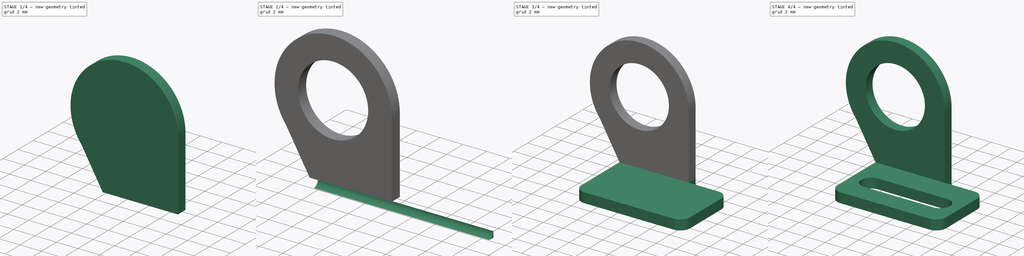
[diagram: build sequence overview — one tinted view per stage of 4, left to right]
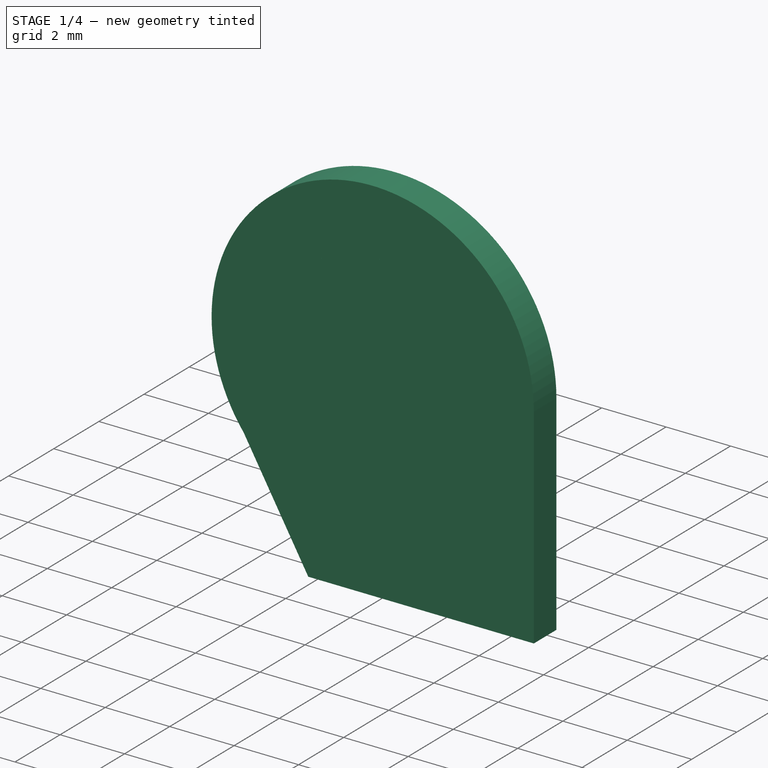
[diagram: stage 1 of 4 — iso view after this stage's code; geometry added in this stage tinted green]
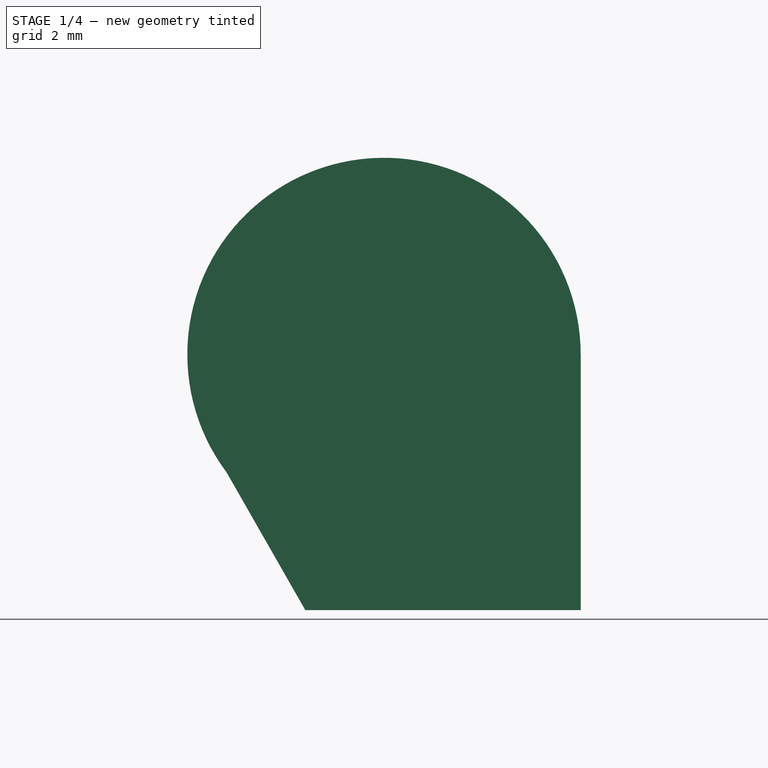
[diagram: stage 1 of 4 — front view after this stage's code; geometry added in this stage tinted green]
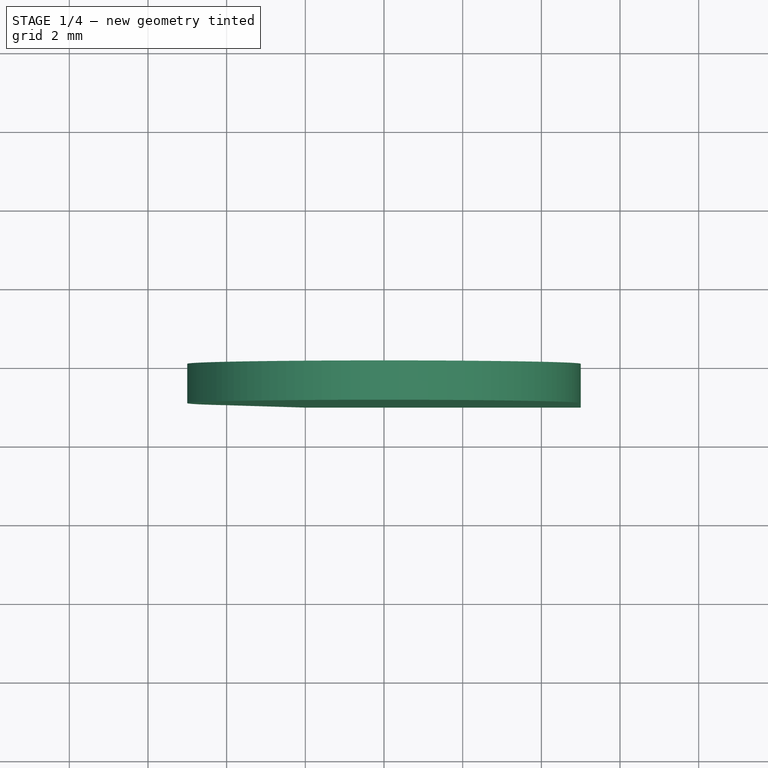
[diagram: stage 1 of 4 — top view after this stage's code; geometry added in this stage tinted green]
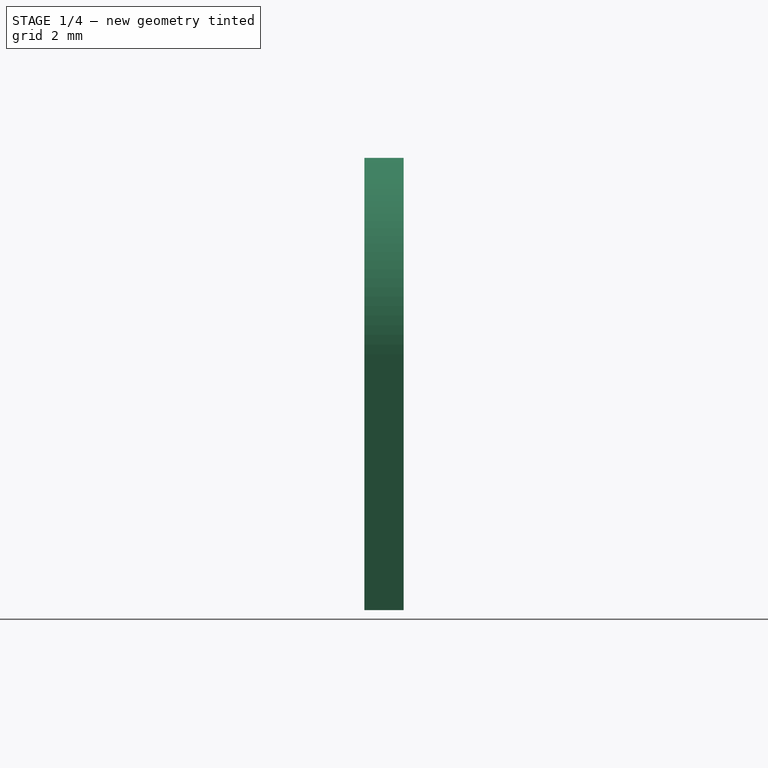
[diagram: stage 1 of 4 — right view after this stage's code; geometry added in this stage tinted green]
FCSTD DOCUMENT  (FreeCAD 0.14R3702 (Git))
Label: scaleauto-e
License: CC-BY 3.0
LicenseURL: http://creativecommons.org/licenses/by/3.0/
objects: Sketcher::SketchObject×5, Part::Extrusion×5, Part::Cut×3, Part::Compound×1
note: 14 computed .brp shape members not serialized (recipe doc carries the construction recipe); baked Part::Feature solids carry a one-line shape summary decoded from their .brp

FEATURE [Sketcher::SketchObject] Sketch003
  Placement = pos=(0,-1,-0.5) rot=(-1,0,0;4.71239rad)
  sketch-geometry (4):
    g0: ArcOfCircle CenterX=2 CenterY=8 CenterZ=0 NormalX=0 NormalY=0 NormalZ=1 Radius=5 StartAngle=0 EndAngle=3.78509
    g1: LineSegment StartX=-2 StartY=5 StartZ=0 EndX=0 EndY=1.5 EndZ=0
    g2: LineSegment StartX=0 StartY=1.5 StartZ=0 EndX=7 EndY=1.5 EndZ=0
    g3: LineSegment StartX=7 StartY=8 StartZ=0 EndX=7 EndY=1.5 EndZ=0
  constraints (5):
    c: Coincident(g1,g0)
    c: Coincident(g2,g1)
    c: Coincident(g3,g0)
    c: Coincident(g3,g2)
    c: Vertical(g3)
FEATURE [Sketcher::SketchObject] Sketch004
  Placement = pos=(0,-1,-0.5) rot=(-1,0,0;4.71239rad)
  sketch-geometry (1):
    g0: Circle CenterX=2 CenterY=8 CenterZ=0 NormalX=0 NormalY=0 NormalZ=1 Radius=3
FEATURE [Part::Extrusion] Extrude003
  Base = -> Sketch003
  Dir = (0,1,0)
  Solid = true
FEATURE [Part::Extrusion] Extrude004
  Base = -> Sketch004
  Dir = (0,1,0)
  Solid = true
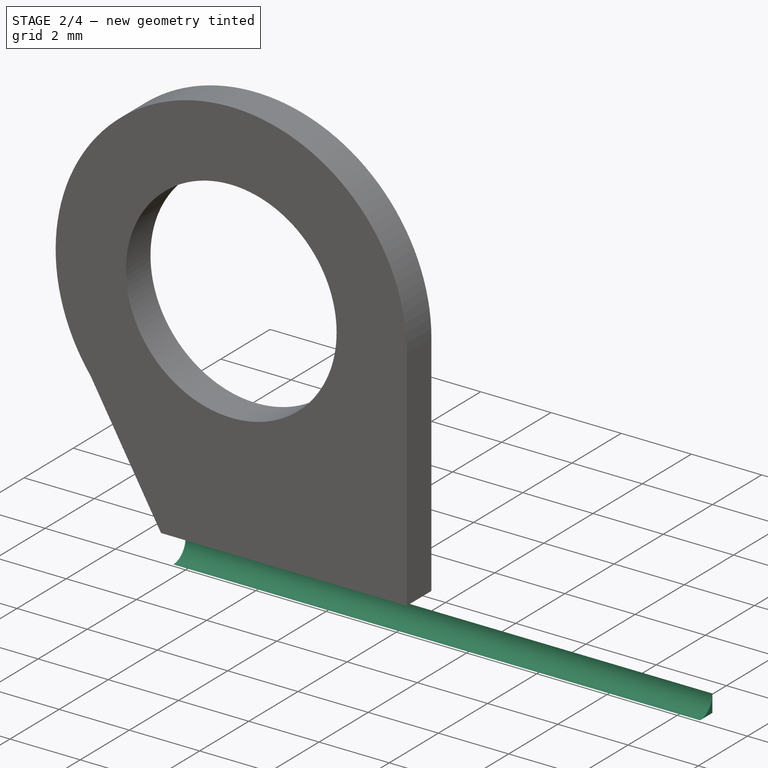
[diagram: stage 2 of 4 — iso view after this stage's code; geometry added in this stage tinted green]
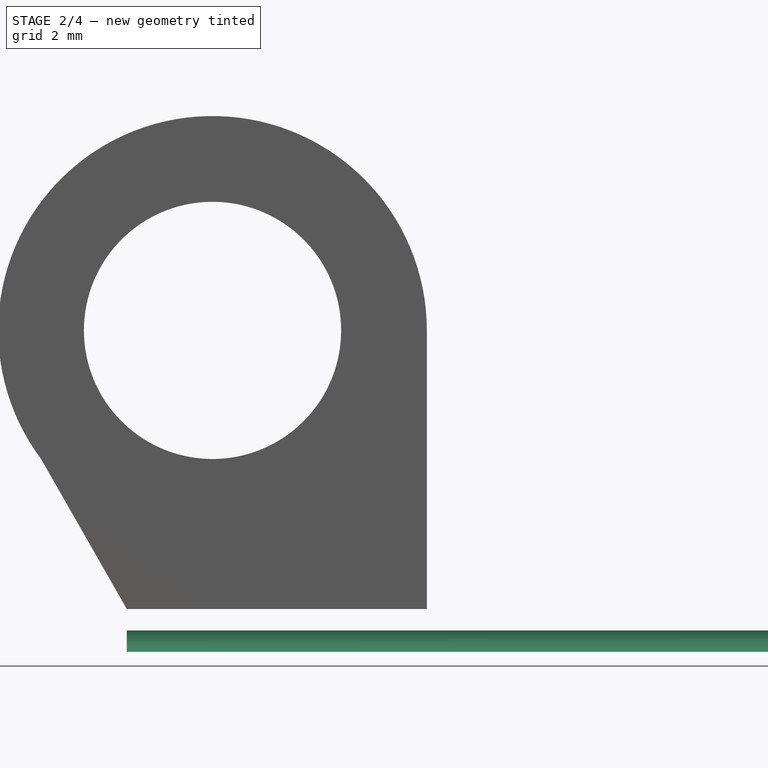
[diagram: stage 2 of 4 — front view after this stage's code; geometry added in this stage tinted green]
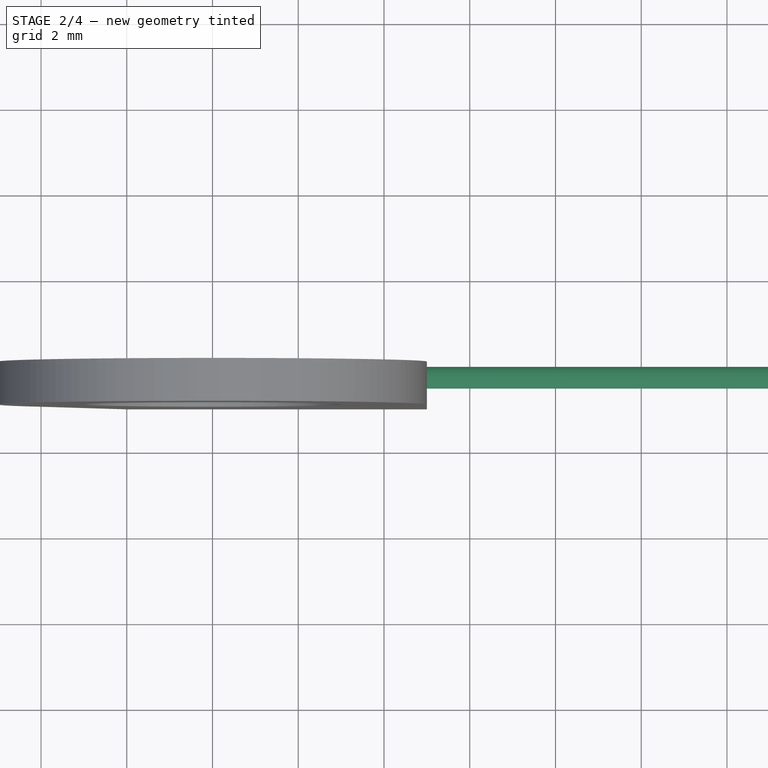
[diagram: stage 2 of 4 — top view after this stage's code; geometry added in this stage tinted green]
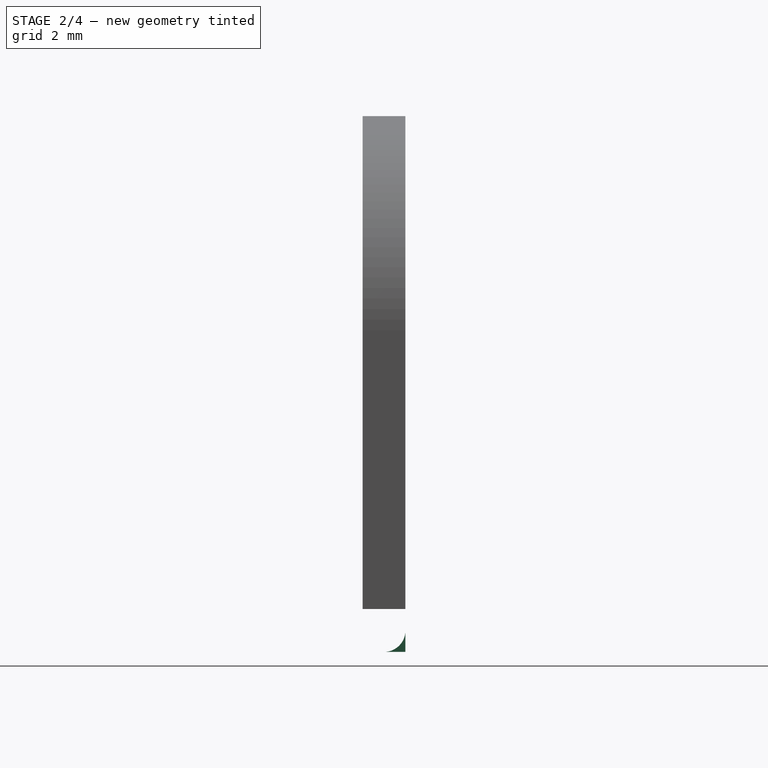
[diagram: stage 2 of 4 — right view after this stage's code; geometry added in this stage tinted green]
FEATURE [Sketcher::SketchObject] Sketch002
  Placement = pos=(0,0,0) rot=(0.57735,0.57735,0.57735;2.0944rad)
  sketch-geometry (3):
    g0: ArcOfCircle CenterX=-0.5 CenterY=0.5 CenterZ=0 NormalX=0 NormalY=0 NormalZ=1 Radius=0.5 StartAngle=4.71239 EndAngle=6.28319
    g1: LineSegment StartX=0 StartY=0.5 StartZ=0 EndX=0 EndY=0 EndZ=0
    g2: LineSegment StartX=-0.5 StartY=0 StartZ=0 EndX=0 EndY=0 EndZ=0
  constraints (7):
    c: PointOnObject(g0,g-2)
    c: Coincident(g1,g0)
    c: Vertical(g1)
    c: Coincident(g2,g0)
    c: Coincident(g2,g-1)
    c: Horizontal(g2)
    c: Coincident(g1,g2)
FEATURE [Part::Extrusion] Extrude002
  Base = -> Sketch002
  Dir = (15,0,0)
  Solid = true
FEATURE [Part::Cut] Cut002
  Base = -> Extrude003
  Tool = -> Extrude004
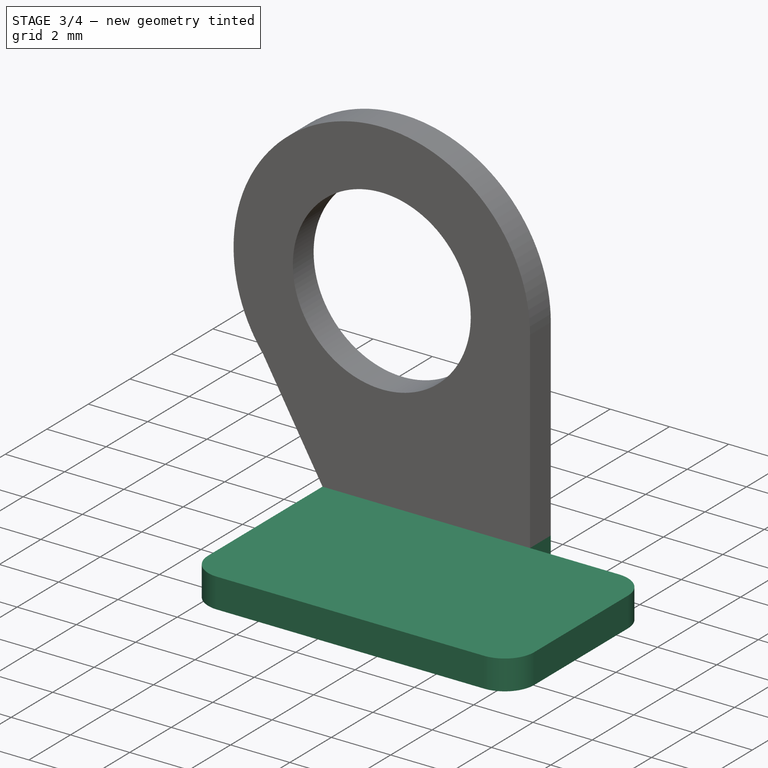
[diagram: stage 3 of 4 — iso view after this stage's code; geometry added in this stage tinted green]
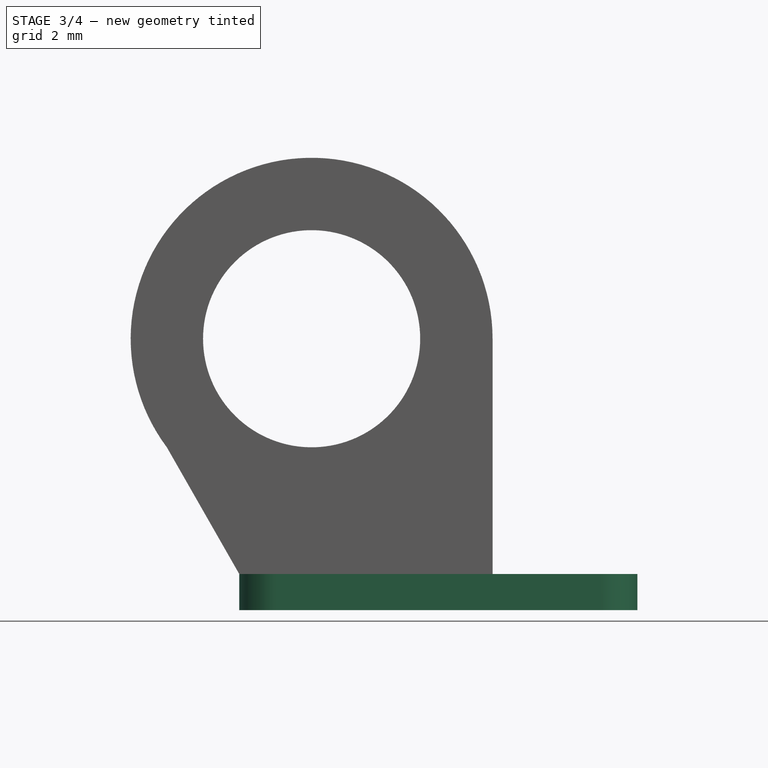
[diagram: stage 3 of 4 — front view after this stage's code; geometry added in this stage tinted green]
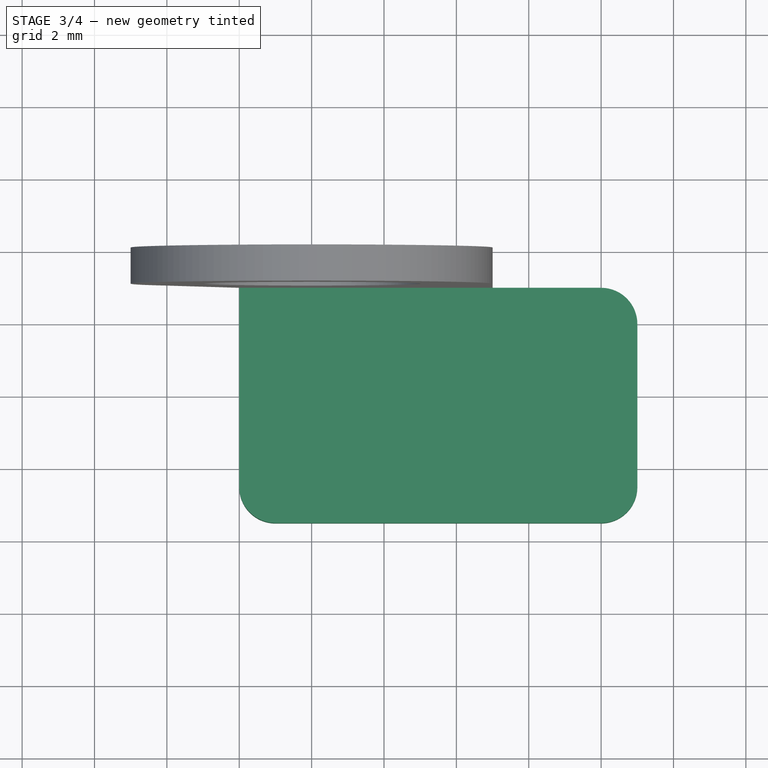
[diagram: stage 3 of 4 — top view after this stage's code; geometry added in this stage tinted green]
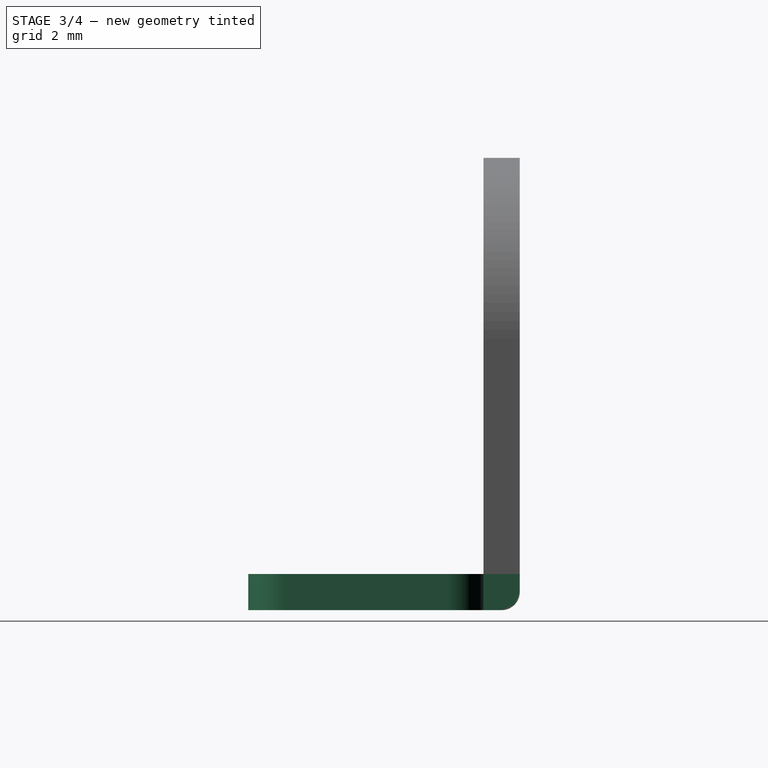
[diagram: stage 3 of 4 — right view after this stage's code; geometry added in this stage tinted green]
FEATURE [Sketcher::SketchObject] Sketch
  Placement = pos=(0,-0.5,0) rot=(0,0,1;0rad)
  sketch-geometry (9):
    g0: ArcOfCircle CenterX=1 CenterY=-6 CenterZ=0 NormalX=0 NormalY=0 NormalZ=1 Radius=1 StartAngle=3.14159 EndAngle=4.71239
    g1: LineSegment StartX=1 StartY=-7 StartZ=0 EndX=10 EndY=-7 EndZ=0
    g2: ArcOfCircle CenterX=10 CenterY=-6 CenterZ=0 NormalX=0 NormalY=0 NormalZ=1 Radius=1 StartAngle=4.71239 EndAngle=6.28318
    g3: LineSegment StartX=11 StartY=-6 StartZ=0 EndX=11 EndY=-1.5 EndZ=0
    g4: ArcOfCircle CenterX=10 CenterY=-1.5 CenterZ=0 NormalX=0 NormalY=0 NormalZ=1 Radius=1 StartAngle=0 EndAngle=1.5708
    g5: LineSegment StartX=10 StartY=-0.5 StartZ=0 EndX=7 EndY=-0.5 EndZ=0
    g6: LineSegment StartX=7 StartY=-0.5 StartZ=0 EndX=7 EndY=0.5 EndZ=0
    g7: LineSegment StartX=7 StartY=0.5 StartZ=0 EndX=0 EndY=0.5 EndZ=0
    g8: LineSegment StartX=0 StartY=0.5 StartZ=0 EndX=0 EndY=-6 EndZ=0
  constraints (13):
    c: Coincident(g1,g0)
    c: Horizontal(g1)
    c: Coincident(g2,g1)
    c: Coincident(g3,g2)
    c: Vertical(g3)
    c: Coincident(g4,g3)
    c: Coincident(g5,g4)
    c: Horizontal(g5)
    c: Vertical(g6)
    c: Coincident(g7,g6)
    c: Coincident(g8,g7)
    c: Coincident(g8,g0)
    c: Vertical(g8)
FEATURE [Part::Extrusion] Extrude
  Base = -> Sketch
  Dir = (0,0,1)
  Solid = true
FEATURE [Sketcher::SketchObject] Sketch001
  sketch-geometry (4):
    g0: LineSegment StartX=2 StartY=-5.5 StartZ=0 EndX=9 EndY=-5.5 EndZ=0
    g1: ArcOfCircle CenterX=2 CenterY=-4.5 CenterZ=0 NormalX=0 NormalY=0 NormalZ=1 Radius=1 StartAngle=1.5708 EndAngle=4.71239
    g2: LineSegment StartX=2 StartY=-3.5 StartZ=0 EndX=9 EndY=-3.5 EndZ=0
    g3: ArcOfCircle CenterX=9 CenterY=-4.5 CenterZ=0 NormalX=0 NormalY=0 NormalZ=1 Radius=1 StartAngle=4.71239 EndAngle=7.85398
  constraints (6):
    c: Horizontal(g0)
    c: Coincident(g1,g0)
    c: Coincident(g2,g1)
    c: Horizontal(g2)
    c: Coincident(g3,g0)
    c: Coincident(g3,g2)
FEATURE [Part::Extrusion] Extrude001
  Base = -> Sketch001
  Dir = (0,0,1)
  Solid = true
FEATURE [Part::Cut] Cut
  Base = -> Extrude
  Tool = -> Extrude002
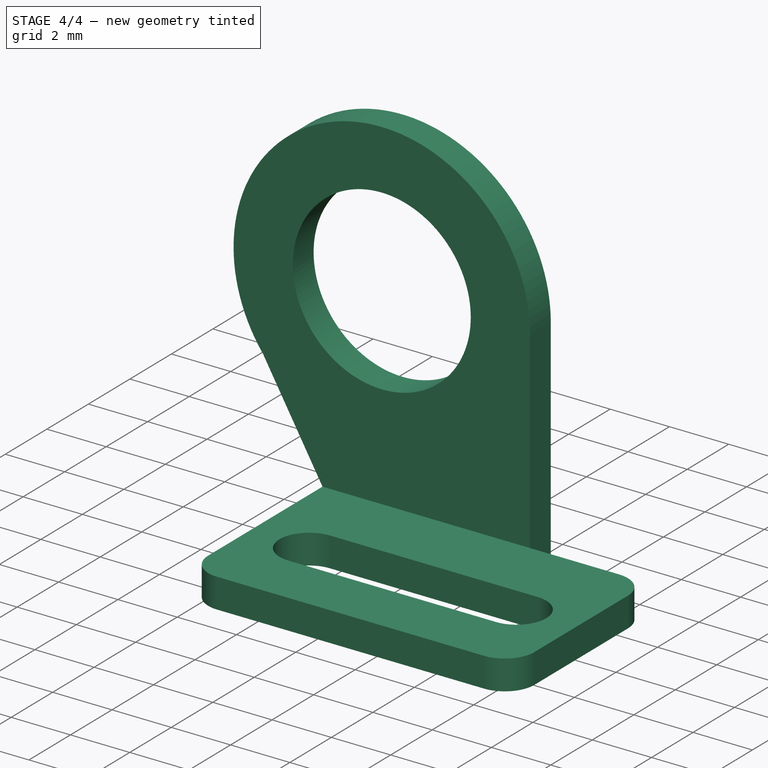
[diagram: stage 4 of 4 — iso view after this stage's code; geometry added in this stage tinted green]
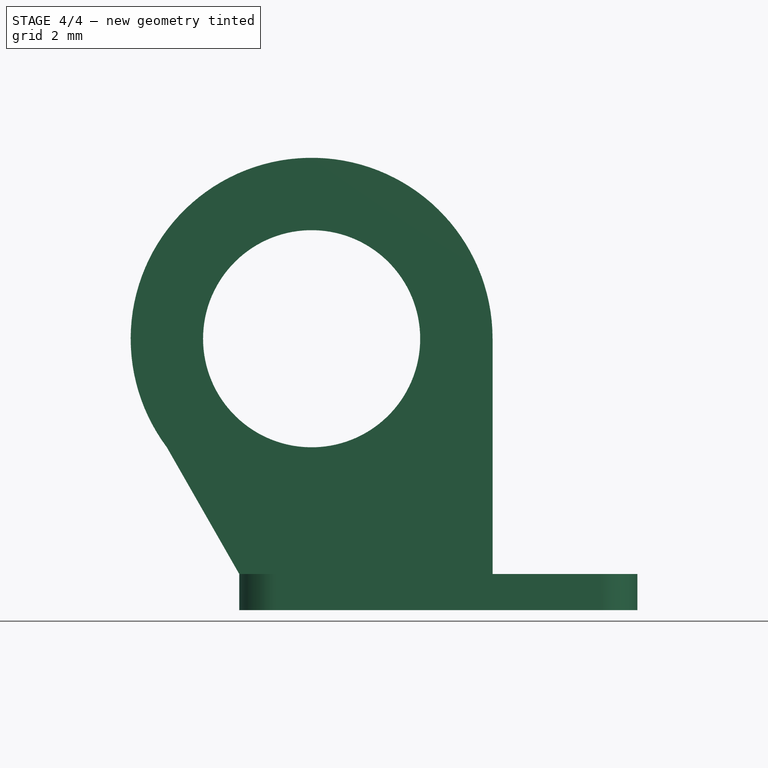
[diagram: stage 4 of 4 — front view after this stage's code; geometry added in this stage tinted green]
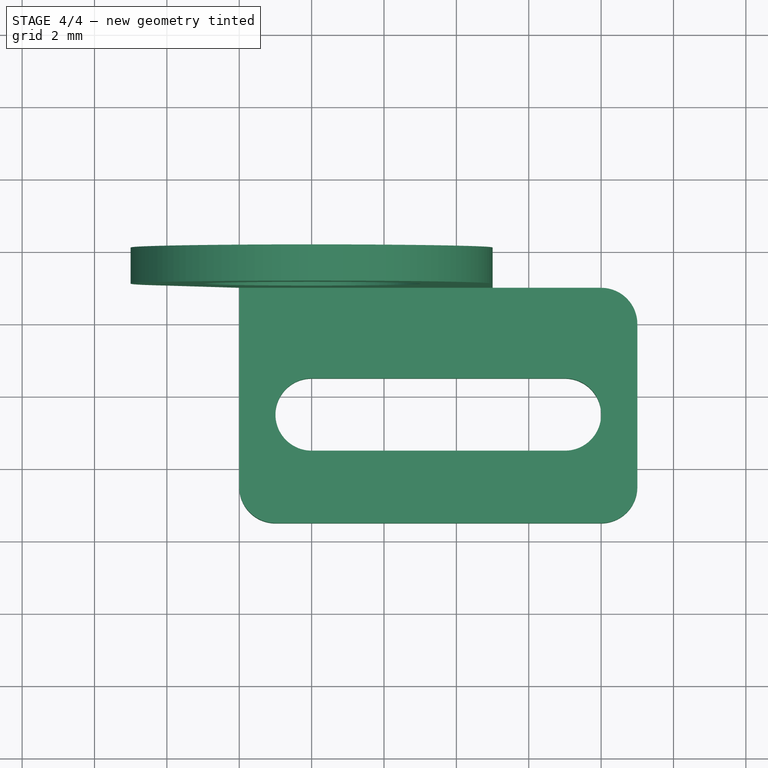
[diagram: stage 4 of 4 — top view after this stage's code; geometry added in this stage tinted green]
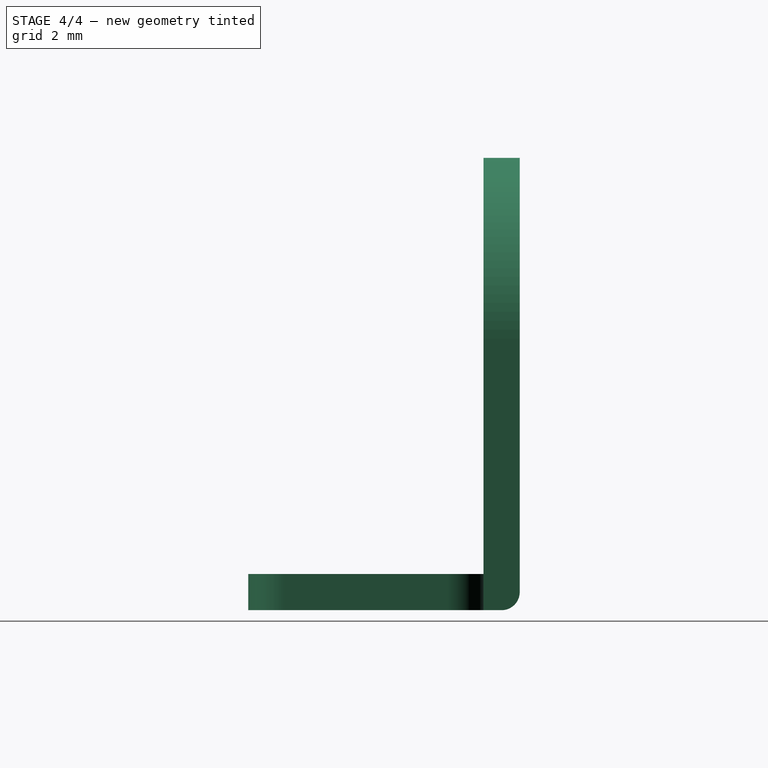
[diagram: stage 4 of 4 — right view after this stage's code; geometry added in this stage tinted green]
FEATURE [Part::Cut] Cut001
  Base = -> Cut
  Tool = -> Extrude001
FEATURE [Part::Compound] Compound  label="SC8000-E"
  Links = -> [Cut001,Cut002]
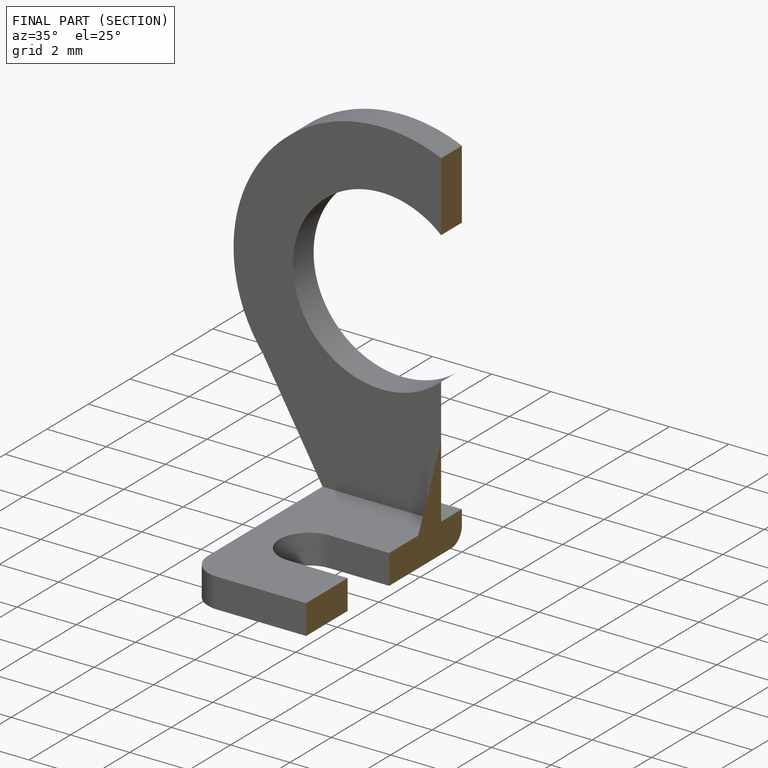
[diagram: finished part — half-section view (interior)]
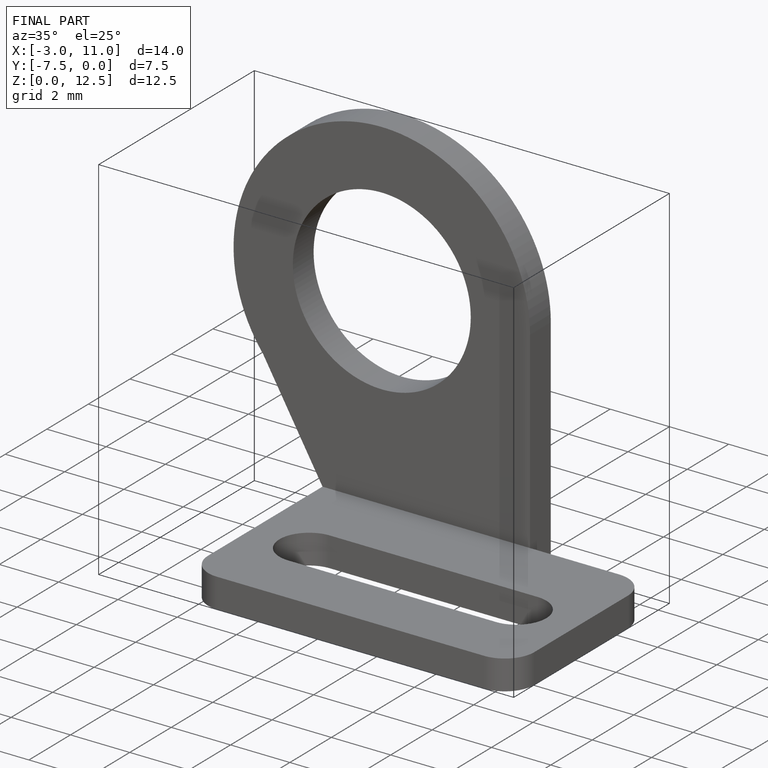
[diagram: finished part — iso view with bounding-box wireframe]
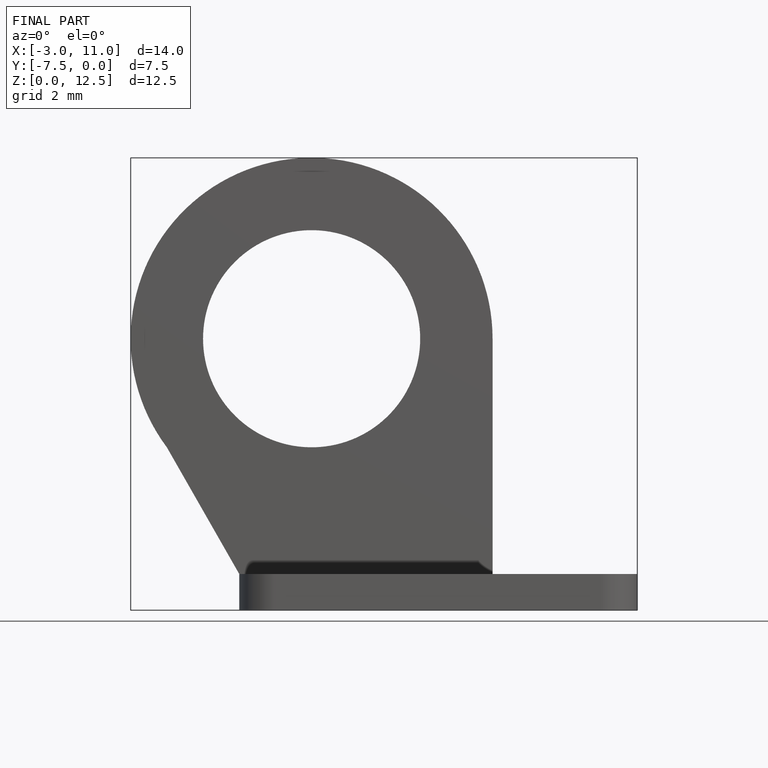
[diagram: finished part — front view with bounding-box wireframe]
